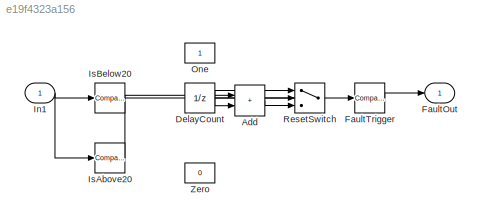
MODEL slx_e19f4323a156
KIND model
CONFIG AbsTol = auto
CONFIG EnableMultiTasking = off
CONFIG FixedStep = auto
CONFIG MaxStep = auto
CONFIG MinStep = auto
CONFIG RelTol = 1e-3
CONFIG SampleTimeConstraint = Unconstrained
CONFIG SolverName = VariableStepAuto
CONFIG StartTime = 0.0
CONFIG StopTime = 10.0
BLOCK [Sum] Add
  IconShape = rectangular
BLOCK [UnitDelay] DelayCount
  HasFrameUpgradeWarning = on
  SampleTime = -1
BLOCK [Outport] FaultOut
BLOCK [Reference] FaultTrigger  REF=simulink/Logic and Bit
Operations/Compare
To Constant
  SourceBlock = simulink/Logic and Bit\nOperations/Compare\nTo Constant
  SourceType = Compare To Constant
BLOCK [Inport] In1
BLOCK [Reference] IsAbove20  REF=simulink/Logic and Bit
Operations/Compare
To Constant
  SourceBlock = simulink/Logic and Bit\nOperations/Compare\nTo Constant
  SourceType = Compare To Constant
BLOCK [Reference] IsBelow20  REF=simulink/Logic and Bit
Operations/Compare
To Constant
  SourceBlock = simulink/Logic and Bit\nOperations/Compare\nTo Constant
  SourceType = Compare To Constant
BLOCK [Constant] One
BLOCK [Switch] ResetSwitch
  Criteria = u2 ~= 0
  InputSameDT = off
  SaturateOnIntegerOverflow = off
  Threshold = 0.5
BLOCK [Constant] Zero
  Value = 0
LINE Add:1 -> ResetSwitch:3
NET DelayCount:1 -> Add:2, ResetSwitch:1
LINE FaultTrigger:1 -> FaultOut:1
NET In1:1 -> IsAbove20:1, IsBelow20:1
LINE IsAbove20:1 -> ResetSwitch:2
LINE IsBelow20:1 -> Add:1
NET ResetSwitch:1 -> DelayCount:1, FaultTrigger:1
note: NET lines group one-source signal fan-out (src -> all destinations, sorted); 1:1 wires keep LINE
